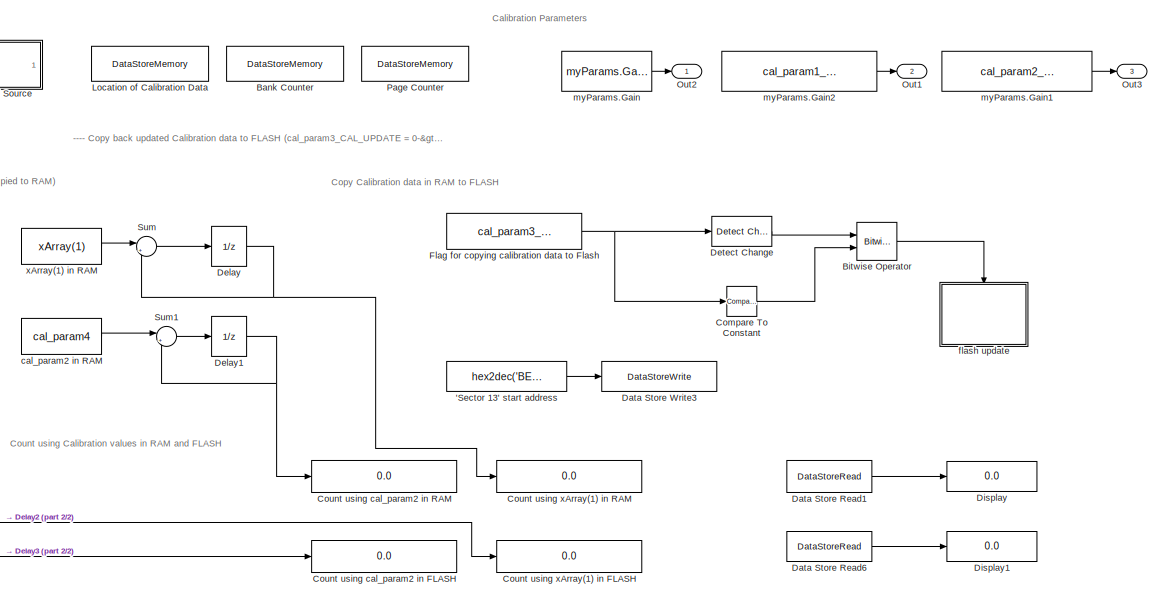
[diagram: root canvas - part 1/2, right side, full height]
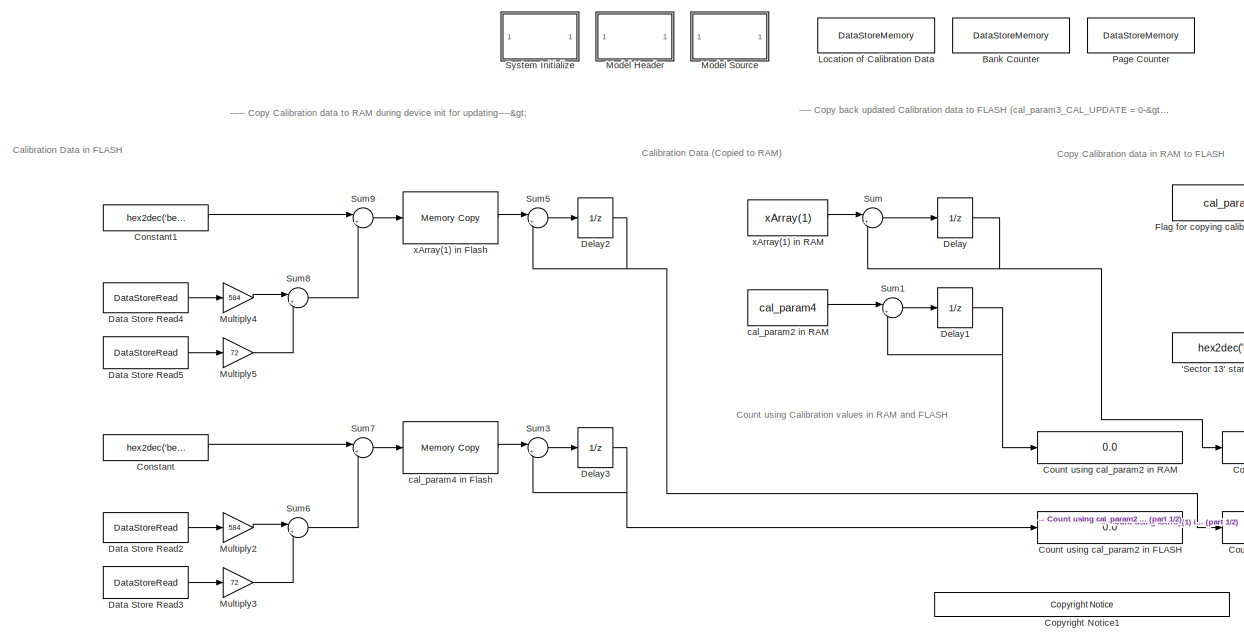
[diagram: root canvas - part 2/2, left side, full height]
MODEL slx_e967142dd960
KIND model
CONFIG AbsTol = auto
CONFIG EnableMultiTasking = on
CONFIG FixedStep = 1
CONFIG MaxStep = auto
CONFIG MinStep = auto
CONFIG RelTol = 1e-3
CONFIG SampleTimeConstraint = Unconstrained
CONFIG SolverName = FixedStepDiscrete
CONFIG StartTime = 0.0
CONFIG StopTime = Inf
BLOCK [Constant] 'Sector 13' start address
  OutDataTypeStr = uint32
  SampleTime = -1
  Value = hex2dec('BE000')
BLOCK [DataStoreMemory] Bank Counter
  DataStoreName = Bank_Counter
  OutDataTypeStr = uint16
  ReadBeforeWriteMsg = warning
  ShowAdditionalParam = off
  StateMustResolveToSignalObject = on
  WriteAfterReadMsg = warning
  WriteAfterWriteMsg = warning
BLOCK [Reference] Bitwise Operator  REF=simulink/Logic and Bit
Operations/Bitwise
Operator
  Ports = [2, 1]
  SourceBlock = simulink/Logic and Bit\nOperations/Bitwise\nOperator
  SourceProductBaseCode = SL
  SourceType = Bitwise Operator
BLOCK [Reference] Compare To Constant  REF=simulink/Logic and Bit
Operations/Compare
To Constant
  Ports = [1, 1]
  SourceBlock = simulink/Logic and Bit\nOperations/Compare\nTo Constant
  SourceProductBaseCode = SL
  SourceType = Compare To Constant
BLOCK [Constant] Constant
  OutDataTypeStr = uint32
  Value = hex2dec('be011')
BLOCK [Constant] Constant1
  OutDataTypeStr = uint32
  Value = hex2dec('be016')
BLOCK [Reference] <copyright redacted>
  Ports = []
  SourceBlock = demo_controls/<copyright redacted>
  SourceProductBaseCode = ME
  SourceType = <copyright redacted>
BLOCK [Display] Count using cal_param2 in  FLASH
  Decimation = 1
  Format = long
  Ports = [1]
BLOCK [Display] Count using cal_param2 in RAM
  Decimation = 1
  Format = long
  Ports = [1]
BLOCK [Display] Count using xArray(1) in  FLASH
  Decimation = 1
  Format = long
  Ports = [1]
BLOCK [Display] Count using xArray(1) in  RAM
  Decimation = 1
  Format = long
  Ports = [1]
BLOCK [DataStoreRead] Data Store Read1
  DataStoreName = Page_Counter
  Ports = [0, 1]
BLOCK [DataStoreRead] Data Store Read2
  DataStoreName = Bank_Counter
  Ports = [0, 1]
BLOCK [DataStoreRead] Data Store Read3
  DataStoreName = Page_Counter
  Ports = [0, 1]
BLOCK [DataStoreRead] Data Store Read4
  DataStoreName = Bank_Counter
  Ports = [0, 1]
BLOCK [DataStoreRead] Data Store Read5
  DataStoreName = Page_Counter
  Ports = [0, 1]
BLOCK [DataStoreRead] Data Store Read6
  DataStoreName = Bank_Counter
  Ports = [0, 1]
BLOCK [DataStoreWrite] Data Store Write3
  DataStoreName = WriteToFlashAddress
  Ports = [1]
BLOCK [UnitDelay] Delay
  HasFrameUpgradeWarning = on
  SampleTime = -1
  StateMustResolveToSignalObject = on
  StateName = Counter1
BLOCK [UnitDelay] Delay1
  HasFrameUpgradeWarning = on
  SampleTime = -1
  StateMustResolveToSignalObject = on
  StateName = Counter2
BLOCK [UnitDelay] Delay2
  HasFrameUpgradeWarning = on
BLOCK [UnitDelay] Delay3
  HasFrameUpgradeWarning = on
BLOCK [Reference] Detect Change  REF=simulink/Logic and Bit
Operations/Detect
Change
  Ports = [1, 1]
  SourceBlock = simulink/Logic and Bit\nOperations/Detect\nChange
  SourceProductBaseCode = SL
  SourceType = Detect Change
BLOCK [Display] Display
  Decimation = 1
  Ports = [1]
BLOCK [Display] Display1
  Decimation = 1
  Ports = [1]
BLOCK [Constant] Flag for copying calibration data to Flash
  SampleTime = -1
  Value = cal_param3_CAL_UPDATE
BLOCK [DataStoreMemory] Location of Calibration Data
  DataStoreName = WriteToFlashAddress
  OutDataTypeStr = uint32
  ReadBeforeWriteMsg = warning
  ShowAdditionalParam = off
  StateMustResolveToSignalObject = on
  WriteAfterReadMsg = warning
  WriteAfterWriteMsg = warning
BLOCK [SubSystem] Model Header
  CopyFcn = cccopyfcn(gcb)
  OpenFcn = ccopenfcn('Model Header')
  Ports = []
  RequestExecContextInheritance = off
BLOCK [SubSystem] Model Source
  CopyFcn = cccopyfcn(gcb)
  OpenFcn = ccopenfcn('Model Source')
  Ports = []
  RequestExecContextInheritance = off
BLOCK [Gain] Multiply2
  Gain = 584
  OutDataTypeStr = uint16
BLOCK [Gain] Multiply3
  Gain = 72
  OutDataTypeStr = uint16
BLOCK [Gain] Multiply4
  Gain = 584
  OutDataTypeStr = uint16
BLOCK [Gain] Multiply5
  Gain = 72
  OutDataTypeStr = uint16
BLOCK [Outport] Out1
  Port = 2
BLOCK [Outport] Out2
BLOCK [Outport] Out3
  Port = 3
BLOCK [DataStoreMemory] Page Counter
  DataStoreName = Page_Counter
  OutDataTypeStr = uint16
  ReadBeforeWriteMsg = warning
  ShowAdditionalParam = off
  StateMustResolveToSignalObject = on
  WriteAfterReadMsg = warning
  WriteAfterWriteMsg = warning
BLOCK [Sum] Sum
  InputSameDT = on
  Inputs = |++
  OutDataTypeStr = Inherit: Same as first input
  Ports = [2, 1]
  SaturateOnIntegerOverflow = on
BLOCK [Sum] Sum1
  InputSameDT = on
  Inputs = |++
  OutDataTypeStr = Inherit: Same as first input
  Ports = [2, 1]
  SaturateOnIntegerOverflow = on
BLOCK [Sum] Sum3
  InputSameDT = on
  Inputs = |++
  OutDataTypeStr = Inherit: Same as first input
  Ports = [2, 1]
  SaturateOnIntegerOverflow = on
BLOCK [Sum] Sum5
  InputSameDT = on
  Inputs = |++
  OutDataTypeStr = Inherit: Same as first input
  Ports = [2, 1]
  SaturateOnIntegerOverflow = on
BLOCK [Sum] Sum6
  InputSameDT = on
  Inputs = |++
  OutDataTypeStr = uint32
  Ports = [2, 1]
  SaturateOnIntegerOverflow = on
BLOCK [Sum] Sum7
  InputSameDT = on
  Inputs = |++
  OutDataTypeStr = Inherit: Same as first input
  Ports = [2, 1]
  SaturateOnIntegerOverflow = on
BLOCK [Sum] Sum8
  InputSameDT = on
  Inputs = |++
  OutDataTypeStr = uint32
  Ports = [2, 1]
  SaturateOnIntegerOverflow = on
BLOCK [Sum] Sum9
  InputSameDT = on
  Inputs = |++
  OutDataTypeStr = Inherit: Same as first input
  Ports = [2, 1]
  SaturateOnIntegerOverflow = on
BLOCK [SubSystem] System Initialize
  CopyFcn = cccopyfcn(gcb)
  OpenFcn = ccopenfcn('System Initialize Function')
  Ports = []
  RequestExecContextInheritance = off
BLOCK [Constant] cal_param2 in RAM
  SampleTime = -1
  Value = cal_param4
BLOCK [Reference] cal_param4 in Flash  REF=idelinklib_common/Memory Copy
  Ports = [1, 1]
  SourceBlock = idelinklib_common/Memory Copy
  SourceProductBaseCode = ME
  SourceType = Memory Copy
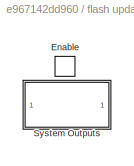
BLOCK [SubSystem] flash update
  Ports = [0, 0, 1]
  RequestExecContextInheritance = off
BLOCK [EnablePort] flash update/Enable
  Ports = []
BLOCK [SubSystem] flash update/System Outputs
  CopyFcn = cccopyfcn(gcb)
  OpenFcn = ccopenfcn('System Outputs Function')
  Ports = []
  RequestExecContextInheritance = off
BLOCK [Constant] myParams.Gain
  SampleTime = -1
  Value = myParams.Gain
  VectorParams1D = off
BLOCK [Constant] myParams.Gain1
  SampleTime = -1
  Value = cal_param2_CURRENT_PAGE
  VectorParams1D = off
BLOCK [Constant] myParams.Gain2
  SampleTime = -1
  Value = cal_param1_CURRENT_BANK
  VectorParams1D = off
BLOCK [Reference] xArray(1) in Flash  REF=idelinklib_common/Memory Copy
  Ports = [1, 1]
  SourceBlock = idelinklib_common/Memory Copy
  SourceProductBaseCode = ME
  SourceType = Memory Copy
BLOCK [Constant] xArray(1) in RAM
  SampleTime = -1
  Value = xArray(1)
ANNOTATION (root): ---- Copy back updated Calibration data to FLASH (cal_param3_CAL_UPDATE = 0->1)---->
ANNOTATION (root): ----- Copy Calibration data to RAM during device init for updating---->
ANNOTATION (root): Calibration Data (Copied to RAM)
ANNOTATION (root): Calibration Data in FLASH
ANNOTATION (root): Calibration Parameters
ANNOTATION (root): Copy Calibration data in RAM to FLASH
ANNOTATION (root): Count using Calibration values in RAM and FLASH
LINE 'Sector 13' start address:1 -> Data Store Write3:1
LINE Bitwise Operator:1 -> flash update:enable
LINE Compare To Constant:1 -> Bitwise Operator:2
LINE Constant1:1 -> Sum9:1
LINE Constant:1 -> Sum7:1
LINE Data Store Read1:1 -> Display:1
LINE Data Store Read2:1 -> Multiply2:1
LINE Data Store Read3:1 -> Multiply3:1
LINE Data Store Read4:1 -> Multiply4:1
LINE Data Store Read5:1 -> Multiply5:1
LINE Data Store Read6:1 -> Display1:1
NET Delay1:1 -> Count using cal_param2 in RAM:1, Sum1:2
NET Delay2:1 -> Count using xArray(1) in  FLASH:1, Sum5:2
NET Delay3:1 -> Count using cal_param2 in  FLASH:1, Sum3:2
NET Delay:1 -> Count using xArray(1) in  RAM:1, Sum:2
LINE Detect Change:1 -> Bitwise Operator:1
NET Flag for copying calibration data to Flash:1 -> Compare To Constant:1, Detect Change:1
LINE Multiply2:1 -> Sum6:1
LINE Multiply3:1 -> Sum6:2
LINE Multiply4:1 -> Sum8:1
LINE Multiply5:1 -> Sum8:2
LINE Sum1:1 -> Delay1:1
LINE Sum3:1 -> Delay3:1
LINE Sum5:1 -> Delay2:1
LINE Sum6:1 -> Sum7:2
LINE Sum7:1 -> cal_param4 in Flash:1
LINE Sum8:1 -> Sum9:2
LINE Sum9:1 -> xArray(1) in Flash:1
LINE Sum:1 -> Delay:1
LINE cal_param2 in RAM:1 -> Sum1:1
LINE cal_param4 in Flash:1 -> Sum3:1
LINE myParams.Gain1:1 -> Out3:1
LINE myParams.Gain2:1 -> Out1:1
LINE myParams.Gain:1 -> Out2:1
LINE xArray(1) in Flash:1 -> Sum5:1
LINE xArray(1) in RAM:1 -> Sum:1
note: NET lines group one-source signal fan-out (src -> all destinations, sorted); 1:1 wires keep LINE
